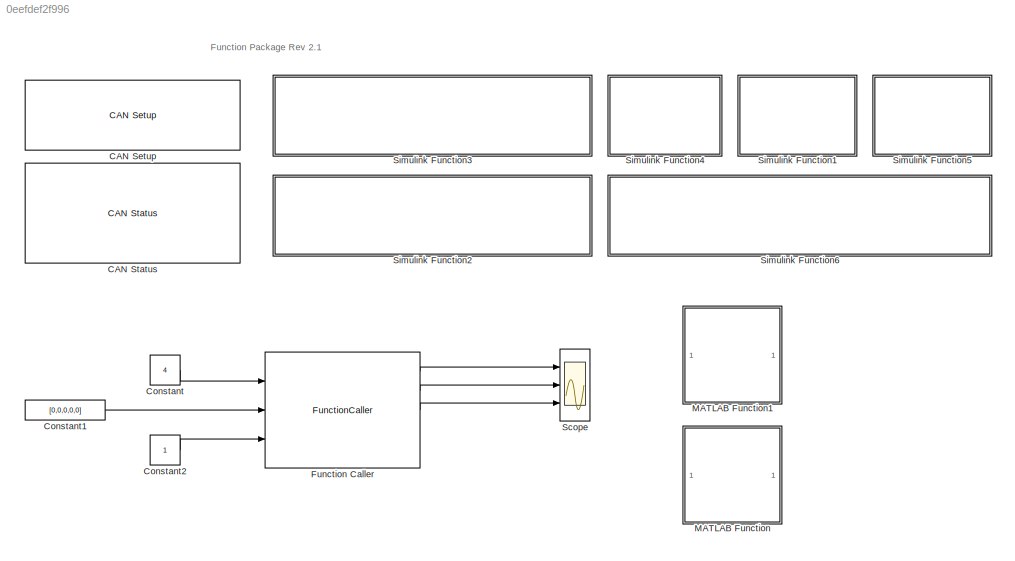
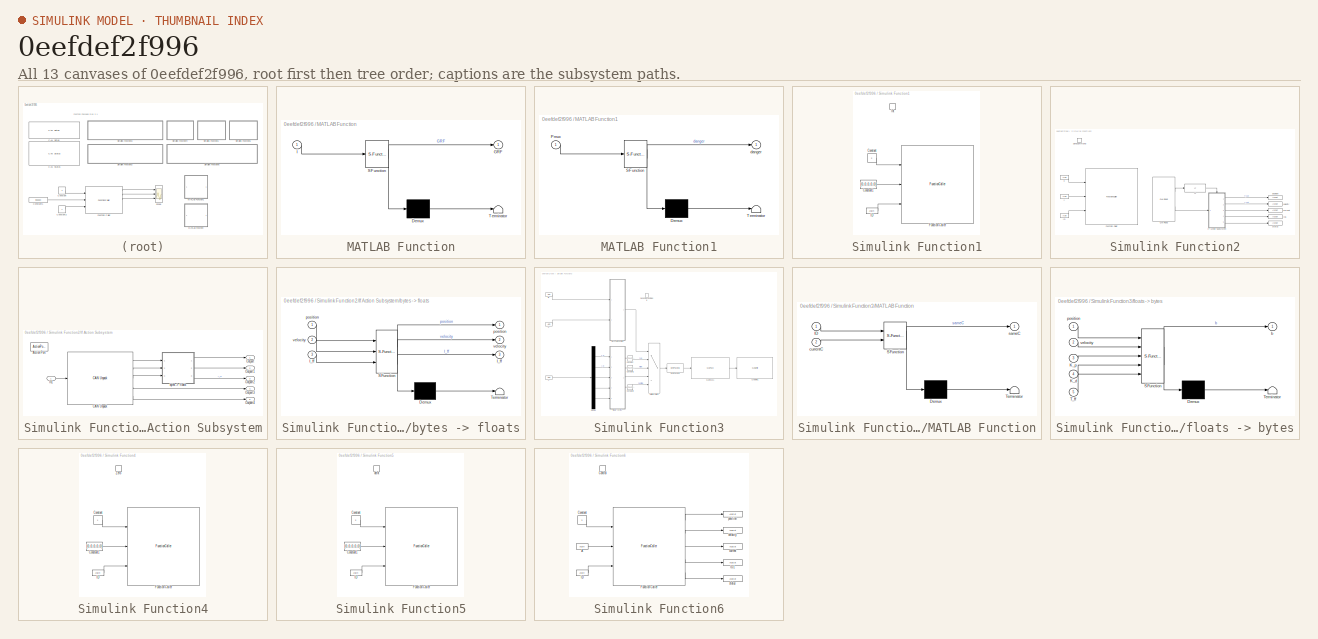
[diagram: thumbnail index - all 13 canvases of the model, root first then tree order]
MODEL slx_0eefdef2f996
KIND model
CONFIG AbsTol = auto
CONFIG EnableMultiTasking = off
CONFIG FixedStep = auto
CONFIG MaxStep = auto
CONFIG MinStep = auto
CONFIG RelTol = 1e-3
CONFIG SampleTimeConstraint = Unconstrained
CONFIG SolverName = FixedStepAuto
CONFIG StartTime = 0.0
CONFIG StopTime = 1.0
WORKSPACE source: mxarray member
WORKSPACE ID = 1
BLOCK [Reference] CAN Setup   REF=speedgoatlib_IO691/CAN Setup 
  Ports = []
  SourceBlock = speedgoatlib_IO691/CAN Setup
  SourceProductName = Simulink Real-Time: Speedgoat I/O Blockset
  SourceType = setup_IO691
BLOCK [Reference] CAN Status  REF=speedgoatlib_IO691/CAN Status
  Ports = []
  SourceBlock = speedgoatlib_IO691/CAN Status
  SourceProductName = Simulink Real-Time: Speedgoat I/O Blockset
  SourceType = status_IO691
  UserDataPersistent = on
BLOCK [Constant] Constant
  Value = 4
BLOCK [Constant] Constant1
  Value = [0,0,0,0,0]
BLOCK [Constant] Constant2
BLOCK [FunctionCaller] Function Caller
  FunctionPrototype = [position,velocity,current,ID,status] = SendCommand(C,A,ID)
  InputArgumentSpecifications = <Enter example>
  OutputArgumentSpecifications = <Enter example>
  Ports = [3, 5]
BLOCK [SubSystem] MATLAB Function
  ErrorFcn = Stateflow.Translate.translate
  PermitHierarchicalResolution = ExplicitOnly
  Ports = [1, 1]
  RequestExecContextInheritance = off
  SFBlockType = MATLAB Function
  TreatAsAtomicUnit = on
BLOCK [Demux] MATLAB Function/ Demux 
  Outputs = 1
  Ports = [1, 1]
BLOCK [S-Function] MATLAB Function/ SFunction 
  EnableBusSupport = on
  FunctionName = sf_sfun
  PortCounts = [1 2]
  Ports = [1, 2]
  SFcnIsStateOwnerBlock = off
  SFunctionDeploymentMode = off
  Tag = Stateflow S-Function 1
BLOCK [Terminator] MATLAB Function/ Terminator 
BLOCK [Outport] MATLAB Function/GRF
BLOCK [Inport] MATLAB Function/I
BLOCK [SubSystem] MATLAB Function1
  ErrorFcn = Stateflow.Translate.translate
  PermitHierarchicalResolution = ExplicitOnly
  Ports = [1, 1]
  RequestExecContextInheritance = off
  SFBlockType = MATLAB Function
  TreatAsAtomicUnit = on
BLOCK [Demux] MATLAB Function1/ Demux 
  Outputs = 1
  Ports = [1, 1]
BLOCK [S-Function] MATLAB Function1/ SFunction 
  EnableBusSupport = on
  FunctionName = sf_sfun
  PortCounts = [1 2]
  Ports = [1, 2]
  SFcnIsStateOwnerBlock = off
  SFunctionDeploymentMode = off
  Tag = Stateflow S-Function 3
BLOCK [Terminator] MATLAB Function1/ Terminator 
BLOCK [Inport] MATLAB Function1/Pmux
BLOCK [Outport] MATLAB Function1/danger
BLOCK [Scope] Scope
  Floating = off
  NumInputPorts = 3
  Ports = [3]
  ScopeSpecificationString = Simulink.scopes.TimeScopeBlockCfg('CurrentConfiguration', extmgr.ConfigurationSet(extmgr.Configuration('Core','General UI',true),extmgr.Configuration('Core','Source UI',true),extmgr.Configuration('Sources','WiredSimulink',true),extmgr.Configuration('Visuals','Time Domain',true,'SerializedDisplays',{struct('MinYLimReal','-1.00000','MaxYLimReal','1.00000','YLabelReal','','MinYLimMag','0.00000','MaxY...<+1377ch>
BLOCK [SubSystem] Simulink Function1
  Ports = [0, 0, 0, 1]
  RequestExecContextInheritance = off
  TreatAsAtomicUnit = on
BLOCK [Constant] Simulink Function1/Constant
  Value = 2
BLOCK [Constant] Simulink Function1/Constant1
  Value = [0,0,0,0,0]
BLOCK [FunctionCaller] Simulink Function1/Function Caller
  FunctionPrototype = SendOnlyCommand(C,A,ID)
  InputArgumentSpecifications = <Enter example>
  OutputArgumentSpecifications = <Enter example>
  Ports = [3]
BLOCK [ArgIn] Simulink Function1/ID
  ArgumentName = ID
BLOCK [TriggerPort] Simulink Function1/Int
  FunctionName = Int
  FunctionVisibility = scoped
  IsSimulinkFunction = on
  Ports = []
  StatesWhenEnabling = held
  TriggerType = function-call
  VariantControl = (inherit)
BLOCK [SubSystem] Simulink Function2
  Ports = [0, 0, 0, 1]
  RequestExecContextInheritance = off
  TreatAsAtomicUnit = on
BLOCK [ArgIn] Simulink Function2/A
  ArgumentName = A
  Port = 2
  PortDimensions = 5
BLOCK [ArgIn] Simulink Function2/C
  ArgumentName = C
  DisableCoverage = on
BLOCK [Reference] Simulink Function2/CAN Read  REF=speedgoatlib_IO691/CAN Read
  Ports = [0, 2]
  SourceBlock = speedgoatlib_IO691/CAN Read
  SourceProductName = Simulink Real-Time: Speedgoat I/O Blockset
  SourceType = read_IO691
BLOCK [FunctionCaller] Simulink Function2/Function Caller
  FunctionPrototype = SendOnlyCommand(C,A,ID)
  InputArgumentSpecifications = <Enter example>
  OutputArgumentSpecifications = <Enter example>
  Ports = [3]
BLOCK [ArgIn] Simulink Function2/ID
  ArgumentName = ID
  Port = 3
BLOCK [ArgOut] Simulink Function2/ID1
  ArgumentName = ID
  Port = 4
BLOCK [If] Simulink Function2/If
  IfExpression = u1 ~= 0
  Ports = [1, 1]
  ShowElse = off
BLOCK [SubSystem] Simulink Function2/If Action Subsystem
  Ports = [1, 5, 0, 0, 0, 0, 0, 1]
  RequestExecContextInheritance = off
  TreatAsAtomicUnit = on
BLOCK [ActionPort] Simulink Function2/If Action Subsystem/Action Port
  ActionPortLabel = if(u1 ~= 0)
BLOCK [Reference] Simulink Function2/If Action Subsystem/CAN Unpack  REF=canmsglib/CAN Unpack
  Ports = [1, 5]
  SourceBlock = canmsglib/CAN Unpack
  SourceProductBaseCode = ME,XP,VN
  SourceType = CAN Unpack
BLOCK [Inport] Simulink Function2/If Action Subsystem/In1
BLOCK [Outport] Simulink Function2/If Action Subsystem/Outport
BLOCK [Outport] Simulink Function2/If Action Subsystem/Outport1
  Port = 2
BLOCK [Outport] Simulink Function2/If Action Subsystem/Outport2
  Port = 3
BLOCK [Outport] Simulink Function2/If Action Subsystem/Outport3
  Port = 4
BLOCK [Outport] Simulink Function2/If Action Subsystem/Outport4
  Port = 5
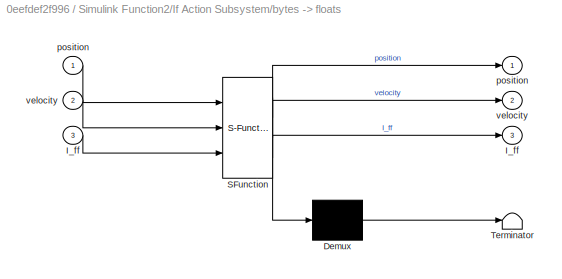
BLOCK [SubSystem] Simulink Function2/If Action Subsystem/bytes -> floats
  ErrorFcn = Stateflow.Translate.translate
  PermitHierarchicalResolution = ExplicitOnly
  Ports = [3, 3]
  RequestExecContextInheritance = off
  SFBlockType = MATLAB Function
  TreatAsAtomicUnit = on
BLOCK [Demux] Simulink Function2/If Action Subsystem/bytes -> floats/ Demux 
  Outputs = 1
  Ports = [1, 1]
BLOCK [S-Function] Simulink Function2/If Action Subsystem/bytes -> floats/ SFunction 
  EnableBusSupport = on
  FunctionName = sf_sfun
  PortCounts = [3 4]
  Ports = [3, 4]
  SFcnIsStateOwnerBlock = off
  SFunctionDeploymentMode = off
  Tag = Stateflow S-Function 2
BLOCK [Terminator] Simulink Function2/If Action Subsystem/bytes -> floats/ Terminator 
BLOCK [Outport] Simulink Function2/If Action Subsystem/bytes -> floats/I_ff
  Port = 3
BLOCK [Inport] Simulink Function2/If Action Subsystem/bytes -> floats/I_ff 
  Port = 3
BLOCK [Outport] Simulink Function2/If Action Subsystem/bytes -> floats/position
BLOCK [Inport] Simulink Function2/If Action Subsystem/bytes -> floats/position 
BLOCK [Outport] Simulink Function2/If Action Subsystem/bytes -> floats/velocity
  Port = 2
BLOCK [Inport] Simulink Function2/If Action Subsystem/bytes -> floats/velocity 
  Port = 2
BLOCK [TriggerPort] Simulink Function2/SendCommand
  FunctionName = SendCommand
  FunctionVisibility = scoped
  IsSimulinkFunction = on
  Ports = []
  StatesWhenEnabling = held
  TriggerType = function-call
  VariantControl = (inherit)
BLOCK [ArgOut] Simulink Function2/current
  ArgumentName = current
  Port = 3
BLOCK [ArgOut] Simulink Function2/position
  ArgumentName = position
BLOCK [ArgOut] Simulink Function2/status
  ArgumentName = status
  OutDataTypeStr = uint8
  Port = 5
BLOCK [ArgOut] Simulink Function2/velocity
  ArgumentName = velocity
  Port = 2
BLOCK [SubSystem] Simulink Function3
  Ports = [0, 0, 0, 1]
  RequestExecContextInheritance = off
  TreatAsAtomicUnit = on
BLOCK [ArgIn] Simulink Function3/A
  ArgumentName = A
  Port = 2
  PortDimensions = 5
BLOCK [Reference] Simulink Function3/Byte Packing  REF=slrealtimeutilitieslib/Byte Packing
  Ports = [1, 1]
  SourceBlock = slrealtimeutilitieslib/Byte Packing
  SourceProductBaseCode = XP
  SourceType = slrealtimebytepacking
BLOCK [ArgIn] Simulink Function3/C
  ArgumentName = C
  DisableCoverage = on
BLOCK [Reference] Simulink Function3/CAN Pack1  REF=canmsglib/CAN Pack
  Ports = [1, 1]
  SourceBlock = canmsglib/CAN Pack
  SourceProductBaseCode = ME,XP,VN
  SourceType = CAN Pack
BLOCK [Reference] Simulink Function3/CAN Write1  REF=speedgoatlib_IO691/CAN Write
  Ports = [1]
  SourceBlock = speedgoatlib_IO691/CAN Write
  SourceProductName = Simulink Real-Time: Speedgoat I/O Blockset
  SourceType = write_IO691
BLOCK [Constant] Simulink Function3/Constant
  Value = [0xFF, 0xFF, 0xFF, 0xFF, 0xFF, 0xFF, 0xFF, 0xFE]
BLOCK [Constant] Simulink Function3/Constant1
  Value = [0xFF, 0xFF, 0xFF, 0xFF, 0xFF, 0xFF, 0xFF, 0xFC]
BLOCK [Constant] Simulink Function3/Constant2
  Value = [0xFF, 0xFF, 0xFF, 0xFF, 0xFF, 0xFF, 0xFF, 0xFD]
BLOCK [Demux] Simulink Function3/Demux
  Outputs = 5
  Ports = [1, 5]
BLOCK [ArgIn] Simulink Function3/ID
  ArgumentName = ID
  Port = 3
BLOCK [SubSystem] Simulink Function3/MATLAB Function
  ErrorFcn = Stateflow.Translate.translate
  PermitHierarchicalResolution = ExplicitOnly
  Ports = [2, 1]
  RequestExecContextInheritance = off
  SFBlockType = MATLAB Function
  TreatAsAtomicUnit = on
BLOCK [Demux] Simulink Function3/MATLAB Function/ Demux 
  Outputs = 1
  Ports = [1, 1]
BLOCK [S-Function] Simulink Function3/MATLAB Function/ SFunction 
  EnableBusSupport = on
  FunctionName = sf_sfun
  PortCounts = [2 2]
  Ports = [2, 2]
  SFcnIsStateOwnerBlock = off
  SFunctionDeploymentMode = off
  Tag = Stateflow S-Function 6
BLOCK [Terminator] Simulink Function3/MATLAB Function/ Terminator 
BLOCK [Inport] Simulink Function3/MATLAB Function/ID
BLOCK [Inport] Simulink Function3/MATLAB Function/currentC
  Port = 2
BLOCK [Outport] Simulink Function3/MATLAB Function/sameC
BLOCK [MultiPortSwitch] Simulink Function3/Multiport Switch
  InputSameDT = off
  Inputs = 4
  Ports = [5, 1]
  SaturateOnIntegerOverflow = off
BLOCK [TriggerPort] Simulink Function3/SendOnlyCommand
  FunctionName = SendOnlyCommand
  FunctionVisibility = scoped
  IsSimulinkFunction = on
  Ports = []
  StatesWhenEnabling = held
  TriggerType = function-call
  VariantControl = (inherit)
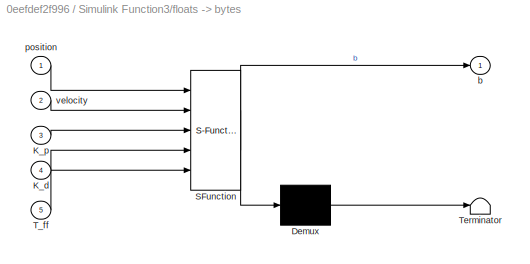
BLOCK [SubSystem] Simulink Function3/floats -> bytes
  ErrorFcn = Stateflow.Translate.translate
  PermitHierarchicalResolution = ExplicitOnly
  Ports = [5, 1]
  RequestExecContextInheritance = off
  SFBlockType = MATLAB Function
  TreatAsAtomicUnit = on
BLOCK [Demux] Simulink Function3/floats -> bytes/ Demux 
  Outputs = 1
  Ports = [1, 1]
BLOCK [S-Function] Simulink Function3/floats -> bytes/ SFunction 
  EnableBusSupport = on
  FunctionName = sf_sfun
  PortCounts = [5 2]
  Ports = [5, 2]
  SFcnIsStateOwnerBlock = off
  SFunctionDeploymentMode = off
  Tag = Stateflow S-Function 5
BLOCK [Terminator] Simulink Function3/floats -> bytes/ Terminator 
BLOCK [Inport] Simulink Function3/floats -> bytes/K_d
  Port = 4
BLOCK [Inport] Simulink Function3/floats -> bytes/K_p
  Port = 3
BLOCK [Inport] Simulink Function3/floats -> bytes/T_ff
  Port = 5
BLOCK [Outport] Simulink Function3/floats -> bytes/b
BLOCK [Inport] Simulink Function3/floats -> bytes/position
BLOCK [Inport] Simulink Function3/floats -> bytes/velocity
  Port = 2
BLOCK [SubSystem] Simulink Function4
  Ports = [0, 0, 0, 1]
  RequestExecContextInheritance = off
  TreatAsAtomicUnit = on
BLOCK [Constant] Simulink Function4/Constant
BLOCK [Constant] Simulink Function4/Constant1
  Value = [0,0,0,0,0]
BLOCK [FunctionCaller] Simulink Function4/Function Caller
  FunctionPrototype = SendOnlyCommand(C,A,ID)
  InputArgumentSpecifications = <Enter example>
  OutputArgumentSpecifications = <Enter example>
  Ports = [3]
BLOCK [ArgIn] Simulink Function4/ID
  ArgumentName = ID
BLOCK [TriggerPort] Simulink Function4/Zero
  FunctionName = Zero
  FunctionVisibility = scoped
  IsSimulinkFunction = on
  Ports = []
  StatesWhenEnabling = held
  TriggerType = function-call
  VariantControl = (inherit)
BLOCK [SubSystem] Simulink Function5
  Ports = [0, 0, 0, 1]
  RequestExecContextInheritance = off
  TreatAsAtomicUnit = on
BLOCK [Constant] Simulink Function5/Constant
  Value = 3
BLOCK [Constant] Simulink Function5/Constant1
  Value = [0,0,0,0,0]
BLOCK [FunctionCaller] Simulink Function5/Function Caller
  FunctionPrototype = SendOnlyCommand(C,A,ID)
  InputArgumentSpecifications = <Enter example>
  OutputArgumentSpecifications = <Enter example>
  Ports = [3]
BLOCK [ArgIn] Simulink Function5/ID
  ArgumentName = ID
BLOCK [TriggerPort] Simulink Function5/deint
  FunctionName = deint
  FunctionVisibility = scoped
  IsSimulinkFunction = on
  Ports = []
  StatesWhenEnabling = held
  TriggerType = function-call
  VariantControl = (inherit)
BLOCK [SubSystem] Simulink Function6
  Ports = [0, 0, 0, 1]
  RequestExecContextInheritance = off
  TreatAsAtomicUnit = on
BLOCK [ArgIn] Simulink Function6/A
  ArgumentName = A
  PortDimensions = 5
BLOCK [Constant] Simulink Function6/Constant
  Value = 3
BLOCK [TriggerPort] Simulink Function6/Control
  FunctionName = Control
  FunctionVisibility = scoped
  IsSimulinkFunction = on
  Ports = []
  StatesWhenEnabling = held
  TriggerType = function-call
  VariantControl = (inherit)
BLOCK [FunctionCaller] Simulink Function6/Function Caller
  FunctionPrototype = [position,velocity,current,ID,status] = SendCommand(C,A,ID)
  InputArgumentSpecifications = <Enter example>
  OutputArgumentSpecifications = <Enter example>
  Ports = [3, 5]
BLOCK [ArgIn] Simulink Function6/ID
  ArgumentName = ID
  Port = 2
BLOCK [ArgOut] Simulink Function6/ID1
  ArgumentName = ID
  Port = 4
BLOCK [ArgOut] Simulink Function6/current
  ArgumentName = current
  Port = 3
BLOCK [ArgOut] Simulink Function6/position
  ArgumentName = position
BLOCK [ArgOut] Simulink Function6/status
  ArgumentName = status
  OutDataTypeStr = uint8
  Port = 5
BLOCK [ArgOut] Simulink Function6/velocity
  ArgumentName = velocity
  Port = 2
ANNOTATION (root): Function Package Rev 2.1
LINE Constant1:1 -> Function Caller:2
LINE Constant2:1 -> Function Caller:3
LINE Constant:1 -> Function Caller:1
LINE Function Caller:1 -> Scope:1
LINE Function Caller:2 -> Scope:2
LINE Function Caller:3 -> Scope:3
LINE Simulink Function1/Constant1:1 -> Simulink Function1/Function Caller:2
LINE Simulink Function1/Constant:1 -> Simulink Function1/Function Caller:1
LINE Simulink Function1/ID:1 -> Simulink Function1/Function Caller:3
LINE Simulink Function2/A:1 -> Simulink Function2/Function Caller:2
LINE Simulink Function2/C:1 -> Simulink Function2/Function Caller:1
LINE Simulink Function2/CAN Read:1 -> Simulink Function2/If:1
LINE Simulink Function2/CAN Read:2 -> Simulink Function2/If Action Subsystem:1
LINE Simulink Function2/ID:1 -> Simulink Function2/Function Caller:3
LINE Simulink Function2/If Action Subsystem/CAN Unpack:1 -> Simulink Function2/If Action Subsystem/bytes -> floats:1
LINE Simulink Function2/If Action Subsystem/CAN Unpack:2 -> Simulink Function2/If Action Subsystem/bytes -> floats:2
LINE Simulink Function2/If Action Subsystem/CAN Unpack:3 -> Simulink Function2/If Action Subsystem/bytes -> floats:3
LINE Simulink Function2/If Action Subsystem/CAN Unpack:4 -> Simulink Function2/If Action Subsystem/Outport3:1
LINE Simulink Function2/If Action Subsystem/CAN Unpack:5 -> Simulink Function2/If Action Subsystem/Outport4:1
LINE Simulink Function2/If Action Subsystem/In1:1 -> Simulink Function2/If Action Subsystem/CAN Unpack:1
LINE Simulink Function2/If Action Subsystem/bytes -> floats:1 -> Simulink Function2/If Action Subsystem/Outport:1
LINE Simulink Function2/If Action Subsystem/bytes -> floats:2 -> Simulink Function2/If Action Subsystem/Outport1:1
LINE Simulink Function2/If Action Subsystem/bytes -> floats:3 -> Simulink Function2/If Action Subsystem/Outport2:1
LINE Simulink Function2/If Action Subsystem:1 -> Simulink Function2/position:1
LINE Simulink Function2/If Action Subsystem:2 -> Simulink Function2/velocity:1
LINE Simulink Function2/If Action Subsystem:3 -> Simulink Function2/current:1
LINE Simulink Function2/If Action Subsystem:4 -> Simulink Function2/ID1:1
LINE Simulink Function2/If Action Subsystem:5 -> Simulink Function2/status:1
LINE Simulink Function2/If:1 -> Simulink Function2/If Action Subsystem:ifaction
LINE Simulink Function3/A:1 -> Simulink Function3/Demux:1
LINE Simulink Function3/Byte Packing:1 -> Simulink Function3/CAN Pack1:1
LINE Simulink Function3/C:1 -> Simulink Function3/MATLAB Function:2
LINE Simulink Function3/CAN Pack1:1 -> Simulink Function3/CAN Write1:1
LINE Simulink Function3/Constant1:1 -> Simulink Function3/Multiport Switch:3
LINE Simulink Function3/Constant2:1 -> Simulink Function3/Multiport Switch:5
LINE Simulink Function3/Constant:1 -> Simulink Function3/Multiport Switch:2
LINE Simulink Function3/Demux:1 -> Simulink Function3/floats -> bytes:1
LINE Simulink Function3/Demux:2 -> Simulink Function3/floats -> bytes:2
LINE Simulink Function3/Demux:3 -> Simulink Function3/floats -> bytes:3
LINE Simulink Function3/Demux:4 -> Simulink Function3/floats -> bytes:4
LINE Simulink Function3/Demux:5 -> Simulink Function3/floats -> bytes:5
LINE Simulink Function3/ID:1 -> Simulink Function3/MATLAB Function:1
LINE Simulink Function3/MATLAB Function:1 -> Simulink Function3/Multiport Switch:1
LINE Simulink Function3/Multiport Switch:1 -> Simulink Function3/Byte Packing:1
LINE Simulink Function3/floats -> bytes:1 -> Simulink Function3/Multiport Switch:4
LINE Simulink Function4/Constant1:1 -> Simulink Function4/Function Caller:2
LINE Simulink Function4/Constant:1 -> Simulink Function4/Function Caller:1
LINE Simulink Function4/ID:1 -> Simulink Function4/Function Caller:3
LINE Simulink Function5/Constant1:1 -> Simulink Function5/Function Caller:2
LINE Simulink Function5/Constant:1 -> Simulink Function5/Function Caller:1
LINE Simulink Function5/ID:1 -> Simulink Function5/Function Caller:3
LINE Simulink Function6/A:1 -> Simulink Function6/Function Caller:2
LINE Simulink Function6/Constant:1 -> Simulink Function6/Function Caller:1
LINE Simulink Function6/Function Caller:1 -> Simulink Function6/position:1
LINE Simulink Function6/Function Caller:2 -> Simulink Function6/velocity:1
LINE Simulink Function6/Function Caller:3 -> Simulink Function6/current:1
LINE Simulink Function6/Function Caller:4 -> Simulink Function6/ID1:1
LINE Simulink Function6/Function Caller:5 -> Simulink Function6/status:1
LINE Simulink Function6/ID:1 -> Simulink Function6/Function Caller:3
CHART MATLAB Function states=1 transitions=1
  STATE_LABEL 'eML_blk_kernel()'
  STATE_LABEL 'SCRIPT:\nfunction GRF = isOutlier(I)\n    GRF = 0;\n    threshhold = 100;\n    \n    if(threshhold<I)\n        GRF = 1;\n    end\n\n'
CHART Simulink Function2/If Action
Subsystem/bytes -> floats states=1 transitions=1
  STATE_LABEL 'eML_blk_kernel()'
  STATE_LABEL 'SCRIPT:\nfunction [position, velocity, I_ff] = fcn(position, velocity, I_ff)\n\nP_MIN  =-95.5;  % [rad]\nP_MAX  = 95.5;  % [rad]\nV_MIN  =-45;    % [rad/s]\nV_MAX  = 45;    % [rad/s]\nI_MIN  =-40;    % []\nI_MAX  = 40;    % []\n\nposition = position*(P_MAX  - P_MIN)/65535+ P_MIN;\nvelocity = velocity*(V_MAX  - V_MIN)/4095 + V_MIN;\nI_ff     = I_ff*(I_MAX  - I_MIN)/4095 + I_MIN;'
CHART MATLAB Function1 states=1 transitions=1
  STATE_LABEL 'eML_blk_kernel()'
  STATE_LABEL 'SCRIPT:\nfunction danger = isDanger(Pmux)\n    % Pmux position matrix radians\n    %       [p(ID1),p(ID2),p(ID3),p(IDN)]\n    \n    p1Max = .5; \n    p1Min = -.5;\n    p2Max = .5;\n    p2Min = -.5;\n    \n    P1 = Pmux(1:2:end);\n    P2 = Pmux(2:2:end);\n    \n    \n    danger = 0;\n    if((0<sum(P1>p1Max + P1<p1Min)) || (0<sum(P2>p2Max + P2<p2Min)))\n        danger = 1;\n    end\n\n'
CHART Simulink Function3/floats -> bytes states=1 transitions=1
  STATE_LABEL 'eML_blk_kernel()'
  STATE_LABEL 'SCRIPT:\nfunction b = fcn(position, velocity, K_p, K_d, T_ff)\n\nP_MIN  =-95.5;  % [rad]\nP_MAX  = 95.5;  % [rad]\nV_MIN  =-45;    % [rad/s] 30 to 45\nV_MAX  = 45;    % [rad/s]\nKP_MIN = 0;     % [Nm/rad]\nKP_MAX = 500;   % [Nm/rad]\nKD_MIN = 0;     % [Nm*s/rad\nKD_MAX = 5;     % [Nm*s/rad\nT_MIN  =-18;    % [Nm]\nT_MAX  = 18;    % [Nm]\n\nposition = floor((max(min(position,P_MAX) ,P_MIN)  - P_MIN )*65535/(P_MA...<+891ch>'
CHART Simulink Function3/MATLAB Function states=1 transitions=1
  STATE_LABEL 'eML_blk_kernel()'
  STATE_LABEL "SCRIPT:\nfunction sameC = setCurrentID(ID, currentC)\ncoder.extrinsic('set_param')\nset_param([bdroot  '/Simulink Function3/CAN Pack1'],'MsgIdentifier','2')\n\n% % coder.extrinsic('get_param')\n% coder.extrinsic('assignin')\n% % \n% % model = get_param(bdroot, 'Name');\n% % mws = get_param(model, 'modelworkspace');\n% assignin('base','ID', ID);\n% %display(ID);\n\nsameC = currentC;\n\n"
CHART  states=0 transitions=0
CHART  states=0 transitions=0
CHART  states=0 transitions=0
CHART  states=0 transitions=0
CHART  states=0 transitions=0
